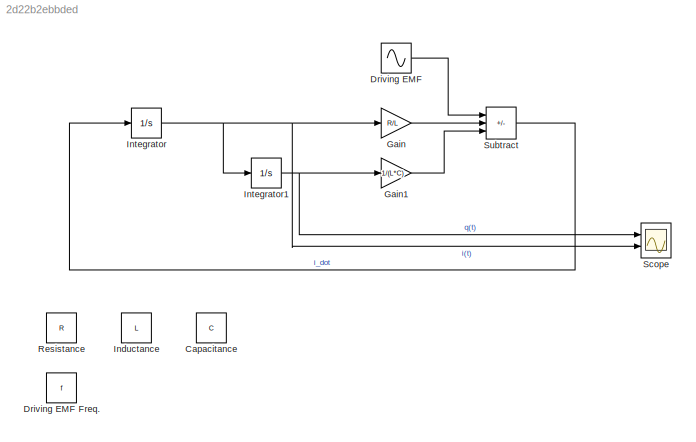
MODEL slx_2d22b2ebbded
KIND model
CONFIG AbsTol = auto
CONFIG EnableMultiTasking = off
CONFIG FixedStep = auto
CONFIG MaxStep = auto
CONFIG MinStep = auto
CONFIG RelTol = 1e-3
CONFIG SampleTimeConstraint = Unconstrained
CONFIG SolverName = VariableStepAuto
CONFIG StartTime = 0.0
CONFIG StopTime = 10.0
WORKSPACE source: mxarray member
WORKSPACE C = 3.5e-06
WORKSPACE L = 0.002
WORKSPACE R = 1230
WORKSPACE f = 1000
BLOCK [Constant] Capacitance
  Value = C
BLOCK [Sin] Driving EMF
  Frequency = 2 * pi * f
  Ports = [0, 1]
  SampleTime = 0
BLOCK [Constant] Driving EMF Freq.
  Value = f
BLOCK [Gain] Gain
  Gain = R/L
BLOCK [Gain] Gain1
  Gain = 1/(L*C)
BLOCK [Constant] Inductance
  Value = L
BLOCK [Integrator] Integrator
  Ports = [1, 1]
BLOCK [Integrator] Integrator1
  Ports = [1, 1]
BLOCK [Constant] Resistance
  Value = R
BLOCK [Scope] Scope
  Floating = off
  NumInputPorts = 2
  Ports = [2]
  ScopeSpecificationString = Simulink.scopes.TimeScopeBlockCfg('CurrentConfiguration', extmgr.ConfigurationSet(extmgr.Configuration('Core','General UI',true),extmgr.Configuration('Core','Source UI',true),extmgr.Configuration('Sources','WiredSimulink',true),extmgr.Configuration('Visuals','Time Domain',true,'SerializedDisplays',{struct('MinYLimReal','-0.0000018','MaxYLimReal','0.0000044','YLabelReal','','MinYLimMag','0.0000000'...<+1446ch>
BLOCK [Sum] Subtract
  IconShape = rectangular
  Inputs = +--
  Ports = [3, 1]
LINE Driving EMF:1 -> Subtract:1
LINE Gain1:1 -> Subtract:3
LINE Gain:1 -> Subtract:2
NET Integrator1:1 -> Gain1:1, Scope:1
NET Integrator:1 -> Gain:1, Integrator1:1, Scope:2
LINE Subtract:1 -> Integrator:1
note: NET lines group one-source signal fan-out (src -> all destinations, sorted); 1:1 wires keep LINE
